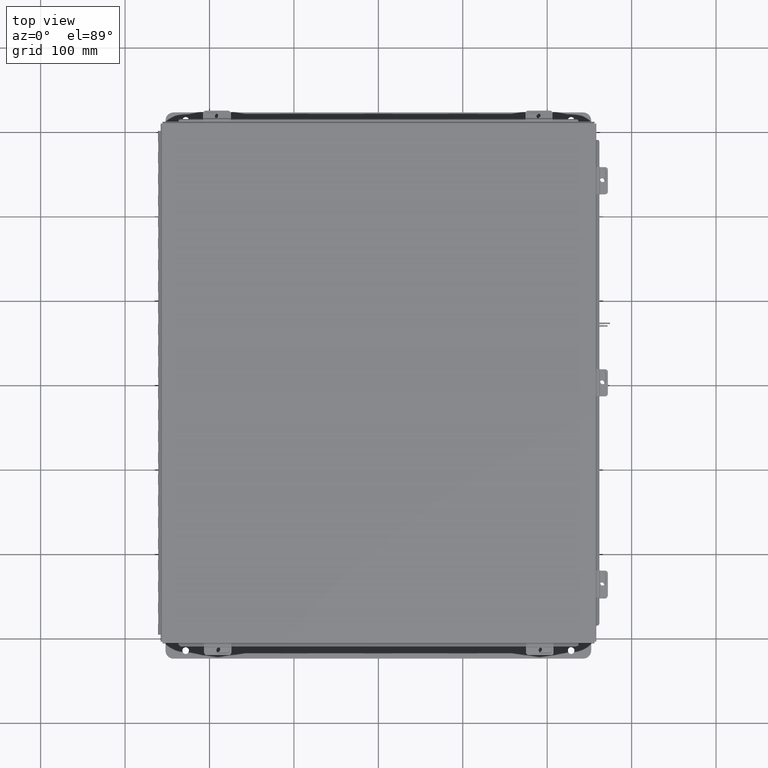
[diagram: clean part render]
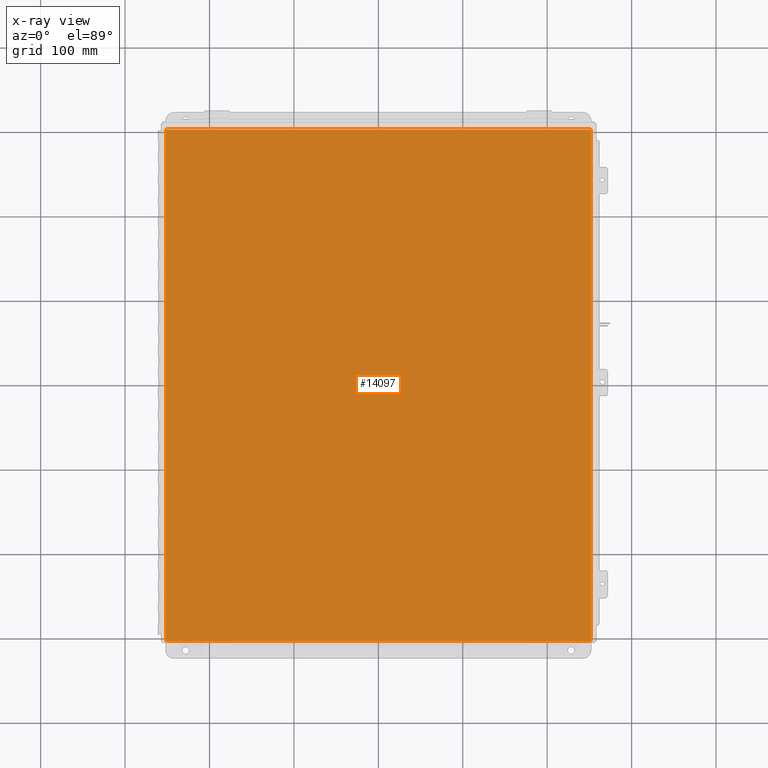
[diagram: x-ray — body ghosted, one internal face saturated and labeled with its STEP entity id]
A machine part, top view, then the same camera in x-ray: the body is ghosted and one INTERNAL B-rep face — a face not visible from any outside direction — is saturated and labeled: STEP entity #14097.
In plain terms, the highlighted planar face has unit normal (0, 0, -1).
Its self-contained STEP definition (entity closure, byte-faithful):
#1478 = ORIENTED_EDGE ( 'NONE', *, *, #21111, .F. ) ;
#2310 = DIRECTION ( 'NONE',  ( -0.0000000000000000000, 1.000000000000000000, -0.0000000000000000000 ) ) ;
#2328 = CARTESIAN_POINT ( 'NONE',  ( -9.912300000000000100, -11.92530000000000000, 5.122214988120493500E-017 ) ) ;
#2712 = VECTOR ( 'NONE', #3040, 39.37007874015748100 ) ;
#2777 = LINE ( 'NONE', #3084, #2712 ) ;
#3040 = DIRECTION ( 'NONE',  ( -0.0000000000000000000, -1.000000000000000000, -0.0000000000000000000 ) ) ;
#3084 = CARTESIAN_POINT ( 'NONE',  ( 9.912300000000000100, 11.92529999999999600, 5.122214988120493500E-017 ) ) ;
#3383 = CARTESIAN_POINT ( 'NONE',  ( -9.912300000000000100, 11.92529999999999600, 5.122214988120493500E-017 ) ) ;
#3571 = CARTESIAN_POINT ( 'NONE',  ( -9.912300000000000100, -11.92529999999999600, 5.122214988120493500E-017 ) ) ;
#4373 = AXIS2_PLACEMENT_3D ( 'NONE', #9601, #8526, #8452 ) ;
#4652 = DIRECTION ( 'NONE',  ( -1.000000000000000000, -0.0000000000000000000, -0.0000000000000000000 ) ) ;
#5063 = CARTESIAN_POINT ( 'NONE',  ( -10.00000000000000000, 11.92529999999999600, 0.0000000000000000000 ) ) ;
#6285 = ORIENTED_EDGE ( 'NONE', *, *, #8090, .T. ) ;
#7886 = EDGE_CURVE ( 'NONE', #20715, #18164, #15693, .T. ) ;
#8090 = EDGE_CURVE ( 'NONE', #13046, #17475, #14374, .T. ) ;
#8384 = CARTESIAN_POINT ( 'NONE',  ( 9.912300000000000100, 11.92529999999999300, 5.122214988120493500E-017 ) ) ;
#8432 = ORIENTED_EDGE ( 'NONE', *, *, #19646, .F. ) ;
#8452 = DIRECTION ( 'NONE',  ( -1.000000000000000000, 0.0000000000000000000, -0.0000000000000000000 ) ) ;
#8526 = DIRECTION ( 'NONE',  ( 0.0000000000000000000, 0.0000000000000000000, -1.000000000000000000 ) ) ;
#8694 = EDGE_LOOP ( 'NONE', ( #8432, #12463, #1478, #6285 ) ) ;
#8767 = PLANE ( 'NONE',  #4373 ) ;
#9601 = CARTESIAN_POINT ( 'NONE',  ( 0.0000000000000000000, 0.0000000000000000000, 0.0000000000000000000 ) ) ;
#12463 = ORIENTED_EDGE ( 'NONE', *, *, #7886, .T. ) ;
#13046 = VERTEX_POINT ( 'NONE', #3571 ) ;
#13723 = DIRECTION ( 'NONE',  ( 1.000000000000000000, 0.0000000000000000000, 0.0000000000000000000 ) ) ;
#14097 = ADVANCED_FACE ( 'NONE', ( #24548 ), #8767, .F. ) ;
#14352 = VECTOR ( 'NONE', #13723, 39.37007874015748100 ) ;
#14374 = LINE ( 'NONE', #15998, #14352 ) ;
#15448 = VECTOR ( 'NONE', #4652, 39.37007874015748100 ) ;
#15693 = LINE ( 'NONE', #5063, #15448 ) ;
#15998 = CARTESIAN_POINT ( 'NONE',  ( -10.00000000000000000, -11.92530000000000000, 0.0000000000000000000 ) ) ;
#17475 = VERTEX_POINT ( 'NONE', #20730 ) ;
#18164 = VERTEX_POINT ( 'NONE', #3383 ) ;
#19646 = EDGE_CURVE ( 'NONE', #20715, #17475, #2777, .T. ) ;
#20715 = VERTEX_POINT ( 'NONE', #8384 ) ;
#20730 = CARTESIAN_POINT ( 'NONE',  ( 9.912300000000000100, -11.92530000000000000, 5.122214988120493500E-017 ) ) ;
#21111 = EDGE_CURVE ( 'NONE', #13046, #18164, #22245, .T. ) ;
#22134 = VECTOR ( 'NONE', #2310, 39.37007874015748100 ) ;
#22245 = LINE ( 'NONE', #2328, #22134 ) ;
#24548 = FACE_OUTER_BOUND ( 'NONE', #8694, .T. ) ;